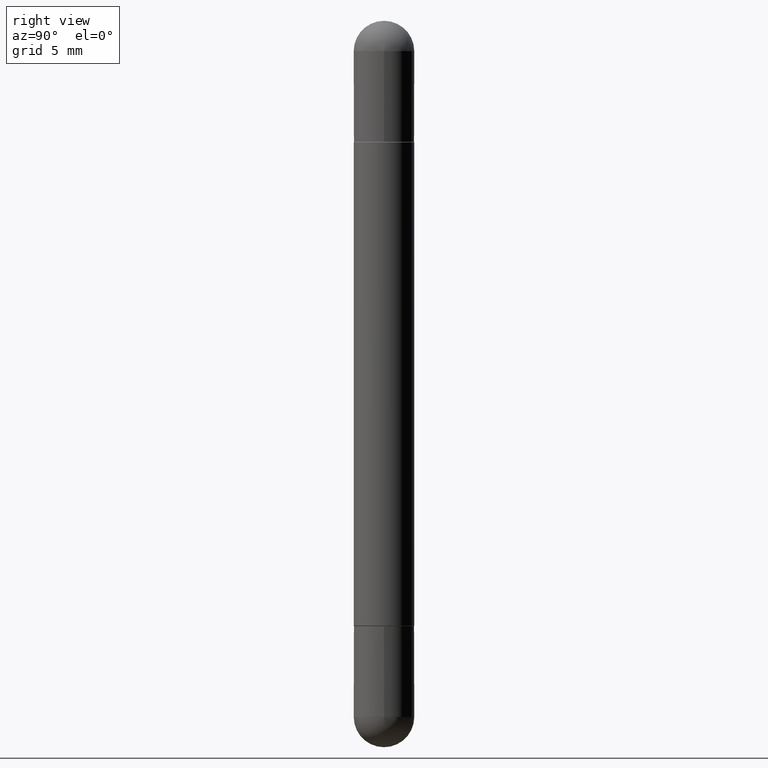
[diagram: clean part render]
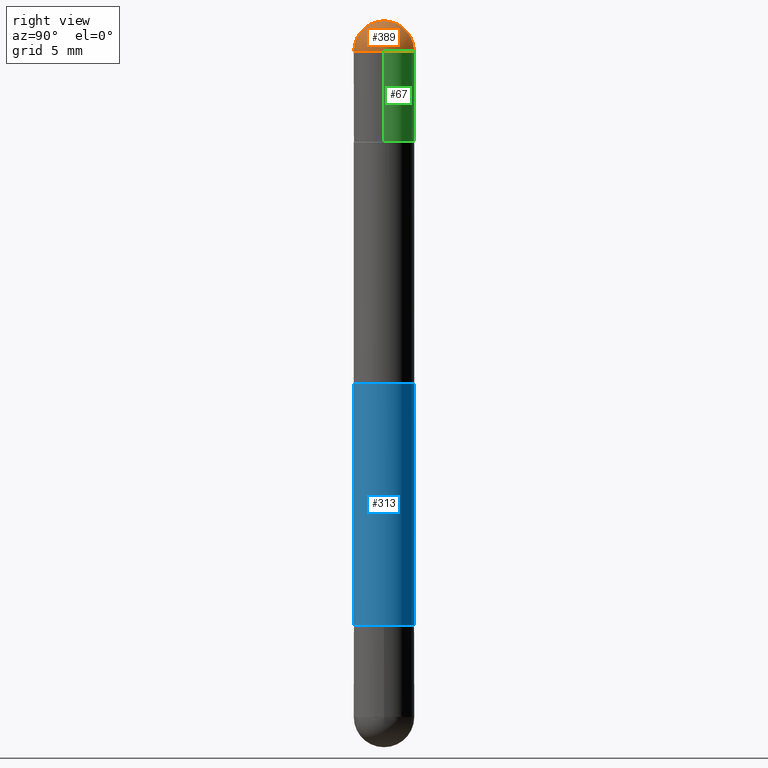
[diagram: same view with three faces highlighted in distinct colors, each labeled with its STEP entity id]
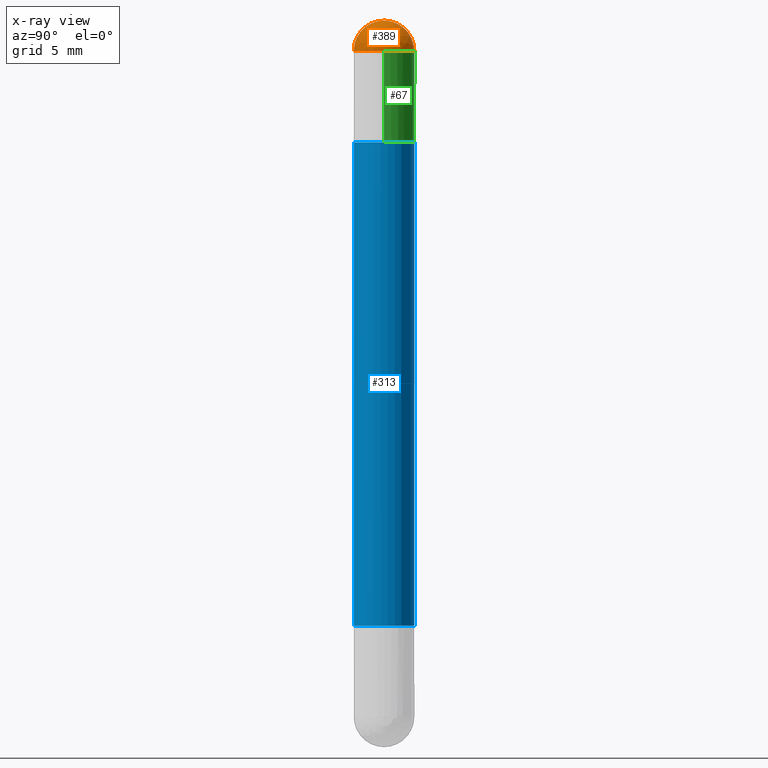
[diagram: x-ray of the same camera — body ghosted, the three highlighted faces saturated]
A machine part, right view with three faces highlighted in distinct colors.
The next image is the same camera in x-ray (body ghosted, the three faces saturated) — at least one of them is partly hidden behind the body in this view.
Their STEP definitions:

[orange] entity #389 — the highlighted spherical surface has radius 1.5875 mm.
#48 = AXIS2_PLACEMENT_3D ( 'NONE', #460, #403, #537 ) ;
#64 = CARTESIAN_POINT ( 'NONE',  ( 3.184241630977248732E-29, -5.493186792727072638E-15, -0.06250000000000022204 ) ) ;
#124 = CIRCLE ( 'NONE', #263, 0.06250000000000001388 ) ;
#125 = DIRECTION ( 'NONE',  ( 6.860497997771530774E-15, 1.000000000000000000, 0.000000000000000000 ) ) ;
#134 = SPHERICAL_SURFACE ( 'NONE', #347, 0.06250000000000022204 ) ;
#179 = AXIS2_PLACEMENT_3D ( 'NONE', #64, #323, #327 ) ;
#197 = EDGE_CURVE ( 'NONE', #443, #198, #124, .T. ) ;
#198 = VERTEX_POINT ( 'NONE', #612 ) ;
#246 = VERTEX_POINT ( 'NONE', #357 ) ;
#263 = AXIS2_PLACEMENT_3D ( 'NONE', #738, #620, #687 ) ;
#289 = CARTESIAN_POINT ( 'NONE',  ( 3.339755826017505569E-29, -5.707577355157435366E-15, 0.000000000000000000 ) ) ;
#308 = CIRCLE ( 'NONE', #179, 0.06250000000000022204 ) ;
#323 = DIRECTION ( 'NONE',  ( -1.000000000000000000, 6.982962677686265922E-15, 4.883557194083112340E-29 ) ) ;
#325 = ORIENTED_EDGE ( 'NONE', *, *, #197, .T. ) ;
#327 = DIRECTION ( 'NONE',  ( -6.982962677686266711E-15, -1.000000000000000000, 0.000000000000000000 ) ) ;
#345 = EDGE_CURVE ( 'NONE', #598, #246, #308, .T. ) ;
#347 = AXIS2_PLACEMENT_3D ( 'NONE', #762, #448, #386 ) ;
#357 = CARTESIAN_POINT ( 'NONE',  ( 4.364351673554259849E-16, 0.06249999999999485828, -0.06250000000000000000 ) ) ;
#386 = DIRECTION ( 'NONE',  ( 6.982962677686266711E-15, 1.000000000000000000, 3.551402391763529759E-15 ) ) ;
#389 = ADVANCED_FACE ( 'NONE', ( #706 ), #134, .T. ) ;
#397 = ORIENTED_EDGE ( 'NONE', *, *, #744, .T. ) ;
#403 = DIRECTION ( 'NONE',  ( 2.445468806185136597E-29, -3.491481338843145583E-15, 1.000000000000000000 ) ) ;
#431 = DIRECTION ( 'NONE',  ( 1.000000000000000000, -6.860497997771530774E-15, -4.840798879624142912E-29 ) ) ;
#439 = EDGE_LOOP ( 'NONE', ( #809, #397, #325, #589 ) ) ;
#443 = VERTEX_POINT ( 'NONE', #702 ) ;
#448 = DIRECTION ( 'NONE',  ( 1.000000000000000000, -6.982962677686266711E-15, -4.883557194083112901E-29 ) ) ;
#460 = CARTESIAN_POINT ( 'NONE',  ( 3.515361408891134418E-29, -5.019004424587023131E-15, -0.06250000000000022204 ) ) ;
#505 = EDGE_CURVE ( 'NONE', #198, #246, #527, .T. ) ;
#518 = AXIS2_PLACEMENT_3D ( 'NONE', #803, #431, #125 ) ;
#527 = CIRCLE ( 'NONE', #48, 0.06250000000000001388 ) ;
#537 = DIRECTION ( 'NONE',  ( 1.000000000000000000, -6.982962677686261189E-15, 0.000000000000000000 ) ) ;
#563 = CIRCLE ( 'NONE', #518, 0.06250000000000022204 ) ;
#589 = ORIENTED_EDGE ( 'NONE', *, *, #505, .T. ) ;
#598 = VERTEX_POINT ( 'NONE', #289 ) ;
#612 = CARTESIAN_POINT ( 'NONE',  ( 0.06250000000000001388, -5.128113216425869076E-15, -0.06250000000000022204 ) ) ;
#620 = DIRECTION ( 'NONE',  ( 2.445468806185136597E-29, -3.491481338843145583E-15, 1.000000000000000000 ) ) ;
#687 = DIRECTION ( 'NONE',  ( 1.000000000000000000, -6.982962677686261189E-15, 0.000000000000000000 ) ) ;
#702 = CARTESIAN_POINT ( 'NONE',  ( -4.287811248606879849E-16, -0.06250000000000537070, -0.06250000000000044409 ) ) ;
#706 = FACE_OUTER_BOUND ( 'NONE', #439, .T. ) ;
#738 = CARTESIAN_POINT ( 'NONE',  ( 3.515361408891134418E-29, -5.019004424587023131E-15, -0.06250000000000022204 ) ) ;
#744 = EDGE_CURVE ( 'NONE', #598, #443, #563, .T. ) ;
#762 = CARTESIAN_POINT ( 'NONE',  ( 3.184241630977248732E-29, -5.493186792727072638E-15, -0.06250000000000022204 ) ) ;
#803 = CARTESIAN_POINT ( 'NONE',  ( 3.184241630977248732E-29, -5.493186792727072638E-15, -0.06250000000000022204 ) ) ;
#809 = ORIENTED_EDGE ( 'NONE', *, *, #345, .F. ) ;

[blue] entity #313 — the highlighted cylindrical surface (edge-blend (fillet) strip) has radius 1.5875 mm, axis along (-0, 0, -1).
#31 = LINE ( 'NONE', #280, #693 ) ;
#51 = FACE_OUTER_BOUND ( 'NONE', #390, .T. ) ;
#55 = DIRECTION ( 'NONE',  ( -6.982962677686265922E-15, -1.000000000000000000, -4.370956789862813261E-15 ) ) ;
#70 = CARTESIAN_POINT ( 'NONE',  ( -4.364351673553924090E-16, -0.06250000000000011102, -1.500000000000000666 ) ) ;
#72 = EDGE_CURVE ( 'NONE', #149, #580, #755, .T. ) ;
#75 = LINE ( 'NONE', #70, #234 ) ;
#81 = VERTEX_POINT ( 'NONE', #404 ) ;
#99 = AXIS2_PLACEMENT_3D ( 'NONE', #478, #680, #55 ) ;
#132 = EDGE_CURVE ( 'NONE', #580, #81, #31, .T. ) ;
#148 = CIRCLE ( 'NONE', #613, 0.06250000000000020817 ) ;
#149 = VERTEX_POINT ( 'NONE', #306 ) ;
#157 = DIRECTION ( 'NONE',  ( -6.982962677686265922E-15, -1.000000000000000000, -3.278217592397104818E-15 ) ) ;
#171 = ORIENTED_EDGE ( 'NONE', *, *, #508, .T. ) ;
#233 = CARTESIAN_POINT ( 'NONE',  ( 3.043038051429425762E-29, -4.377117600452549046E-15, -0.2510000000000003895 ) ) ;
#234 = VECTOR ( 'NONE', #455, 39.37007874015748143 ) ;
#275 = ORIENTED_EDGE ( 'NONE', *, *, #72, .F. ) ;
#280 = CARTESIAN_POINT ( 'NONE',  ( 4.287811248607214129E-16, 0.06250000000000011102, -1.500000000000000222 ) ) ;
#306 = CARTESIAN_POINT ( 'NONE',  ( -4.364351673553627281E-16, -0.06250000000000459355, -0.2510000000000006115 ) ) ;
#313 = ADVANCED_FACE ( 'NONE', ( #51 ), #430, .T. ) ;
#373 = EDGE_CURVE ( 'NONE', #149, #445, #75, .T. ) ;
#390 = EDGE_LOOP ( 'NONE', ( #480, #275, #670, #171 ) ) ;
#398 = DIRECTION ( 'NONE',  ( -6.982962677686265922E-15, -1.000000000000000000, 4.370956789862806950E-15 ) ) ;
#404 = CARTESIAN_POINT ( 'NONE',  ( 4.287811248607399511E-16, 0.06249999999999582279, -1.249000000000000332 ) ) ;
#430 = CYLINDRICAL_SURFACE ( 'NONE', #99, 0.06250000000000011102 ) ;
#437 = CARTESIAN_POINT ( 'NONE',  ( -4.364351673553626295E-16, -0.06250000000000457967, -1.248999999999999666 ) ) ;
#445 = VERTEX_POINT ( 'NONE', #437 ) ;
#455 = DIRECTION ( 'NONE',  ( -2.436379544779363908E-29, 3.504497678504843994E-15, -1.000000000000000000 ) ) ;
#478 = CARTESIAN_POINT ( 'NONE',  ( 0.000000000000000000, 0.000000000000000000, -1.500000000000000444 ) ) ;
#480 = ORIENTED_EDGE ( 'NONE', *, *, #132, .F. ) ;
#508 = EDGE_CURVE ( 'NONE', #445, #81, #148, .T. ) ;
#526 = DIRECTION ( 'NONE',  ( -2.436379544779363908E-29, 3.504497678504843994E-15, -1.000000000000000000 ) ) ;
#580 = VERTEX_POINT ( 'NONE', #651 ) ;
#591 = DIRECTION ( 'NONE',  ( -2.436379544779364188E-29, 3.504497678504843600E-15, 1.000000000000000000 ) ) ;
#613 = AXIS2_PLACEMENT_3D ( 'NONE', #646, #591, #398 ) ;
#646 = CARTESIAN_POINT ( 'NONE',  ( 3.043038051429425762E-29, -4.377117600452549046E-15, -1.248999999999999888 ) ) ;
#651 = CARTESIAN_POINT ( 'NONE',  ( 4.287811248607524250E-16, 0.06249999999999581585, -0.2510000000000002229 ) ) ;
#670 = ORIENTED_EDGE ( 'NONE', *, *, #373, .T. ) ;
#680 = DIRECTION ( 'NONE',  ( -2.436379544779364188E-29, 3.504497678504843600E-15, -1.000000000000000000 ) ) ;
#693 = VECTOR ( 'NONE', #526, 39.37007874015748143 ) ;
#729 = DIRECTION ( 'NONE',  ( 2.436379544779364188E-29, -3.504497678504843600E-15, 1.000000000000000000 ) ) ;
#755 = CIRCLE ( 'NONE', #757, 0.06250000000000020817 ) ;
#757 = AXIS2_PLACEMENT_3D ( 'NONE', #233, #729, #157 ) ;

[green] entity #67 — the highlighted cylindrical surface (edge-blend (fillet) strip) has radius 1.5875 mm, axis along (-0, 0, -1).
#48 = AXIS2_PLACEMENT_3D ( 'NONE', #460, #403, #537 ) ;
#67 = ADVANCED_FACE ( 'NONE', ( #461 ), #727, .T. ) ;
#102 = DIRECTION ( 'NONE',  ( -2.445468806185136597E-29, 3.491481338843145583E-15, -1.000000000000000000 ) ) ;
#113 = VECTOR ( 'NONE', #743, 39.37007874015748143 ) ;
#117 = CARTESIAN_POINT ( 'NONE',  ( 3.515361408891134418E-29, -5.019004424587023131E-15, -0.06250000000000022204 ) ) ;
#121 = CARTESIAN_POINT ( 'NONE',  ( 0.06250000000000001388, -4.800786840909324141E-15, -0.2500000000000003331 ) ) ;
#163 = AXIS2_PLACEMENT_3D ( 'NONE', #302, #768, #270 ) ;
#198 = VERTEX_POINT ( 'NONE', #612 ) ;
#220 = EDGE_CURVE ( 'NONE', #198, #770, #494, .T. ) ;
#228 = DIRECTION ( 'NONE',  ( 1.000000000000000000, -6.982962677686267499E-15, 0.000000000000000000 ) ) ;
#246 = VERTEX_POINT ( 'NONE', #357 ) ;
#247 = CARTESIAN_POINT ( 'NONE',  ( 0.06250000000000001388, -4.364351673553918173E-16, -1.500000000000000444 ) ) ;
#253 = DIRECTION ( 'NONE',  ( -2.445468806185136877E-29, 3.491481338843145188E-15, -1.000000000000000000 ) ) ;
#270 = DIRECTION ( 'NONE',  ( 1.000000000000000000, -6.982962677686269077E-15, 0.000000000000000000 ) ) ;
#288 = AXIS2_PLACEMENT_3D ( 'NONE', #396, #102, #228 ) ;
#302 = CARTESIAN_POINT ( 'NONE',  ( 3.056836007731421306E-29, -4.364351673553932471E-15, -0.2500000000000003331 ) ) ;
#307 = DIRECTION ( 'NONE',  ( 1.000000000000000000, -6.982962677686261189E-15, 0.000000000000000000 ) ) ;
#310 = LINE ( 'NONE', #667, #385 ) ;
#326 = EDGE_CURVE ( 'NONE', #770, #520, #708, .T. ) ;
#337 = ORIENTED_EDGE ( 'NONE', *, *, #505, .F. ) ;
#357 = CARTESIAN_POINT ( 'NONE',  ( 4.364351673554259849E-16, 0.06249999999999485828, -0.06250000000000000000 ) ) ;
#385 = VECTOR ( 'NONE', #253, 39.37007874015748143 ) ;
#396 = CARTESIAN_POINT ( 'NONE',  ( 0.000000000000000000, 0.000000000000000000, -1.500000000000000444 ) ) ;
#403 = DIRECTION ( 'NONE',  ( 2.445468806185136597E-29, -3.491481338843145583E-15, 1.000000000000000000 ) ) ;
#423 = ORIENTED_EDGE ( 'NONE', *, *, #326, .T. ) ;
#460 = CARTESIAN_POINT ( 'NONE',  ( 3.515361408891134418E-29, -5.019004424587023131E-15, -0.06250000000000022204 ) ) ;
#461 = FACE_OUTER_BOUND ( 'NONE', #554, .T. ) ;
#493 = ORIENTED_EDGE ( 'NONE', *, *, #653, .F. ) ;
#494 = LINE ( 'NONE', #247, #113 ) ;
#505 = EDGE_CURVE ( 'NONE', #198, #246, #527, .T. ) ;
#520 = VERTEX_POINT ( 'NONE', #522 ) ;
#522 = CARTESIAN_POINT ( 'NONE',  ( -0.06250000000000001388, -4.262896924209756684E-15, -0.2500000000000003331 ) ) ;
#527 = CIRCLE ( 'NONE', #48, 0.06250000000000001388 ) ;
#537 = DIRECTION ( 'NONE',  ( 1.000000000000000000, -6.982962677686261189E-15, 0.000000000000000000 ) ) ;
#554 = EDGE_LOOP ( 'NONE', ( #493, #567, #337, #787, #423 ) ) ;
#567 = ORIENTED_EDGE ( 'NONE', *, *, #788, .F. ) ;
#612 = CARTESIAN_POINT ( 'NONE',  ( 0.06250000000000001388, -5.128113216425869076E-15, -0.06250000000000022204 ) ) ;
#649 = AXIS2_PLACEMENT_3D ( 'NONE', #117, #675, #307 ) ;
#653 = EDGE_CURVE ( 'NONE', #712, #520, #310, .T. ) ;
#667 = CARTESIAN_POINT ( 'NONE',  ( -0.06250000000000001388, 4.287811248607208706E-16, -1.500000000000000444 ) ) ;
#675 = DIRECTION ( 'NONE',  ( 2.445468806185136597E-29, -3.491481338843145583E-15, 1.000000000000000000 ) ) ;
#708 = CIRCLE ( 'NONE', #163, 0.06250000000000001388 ) ;
#712 = VERTEX_POINT ( 'NONE', #747 ) ;
#727 = CYLINDRICAL_SURFACE ( 'NONE', #288, 0.06250000000000001388 ) ;
#743 = DIRECTION ( 'NONE',  ( -2.445468806185136877E-29, 3.491481338843145188E-15, -1.000000000000000000 ) ) ;
#747 = CARTESIAN_POINT ( 'NONE',  ( -0.06250000000000001388, -4.262896924209757473E-15, -0.06250000000000022204 ) ) ;
#748 = CIRCLE ( 'NONE', #649, 0.06250000000000001388 ) ;
#768 = DIRECTION ( 'NONE',  ( 2.445468806185136597E-29, -3.491481338843145583E-15, 1.000000000000000000 ) ) ;
#770 = VERTEX_POINT ( 'NONE', #121 ) ;
#787 = ORIENTED_EDGE ( 'NONE', *, *, #220, .T. ) ;
#788 = EDGE_CURVE ( 'NONE', #246, #712, #748, .T. ) ;